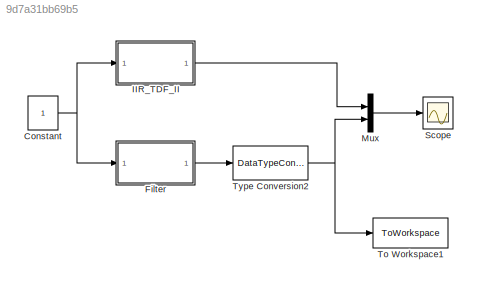
MODEL slx_9d7a31bb69b5
KIND model
BLOCK [Constant] Constant
  OutDataTypeStr = double
  SampleTime = 1/50e6
  VectorParams1D = off
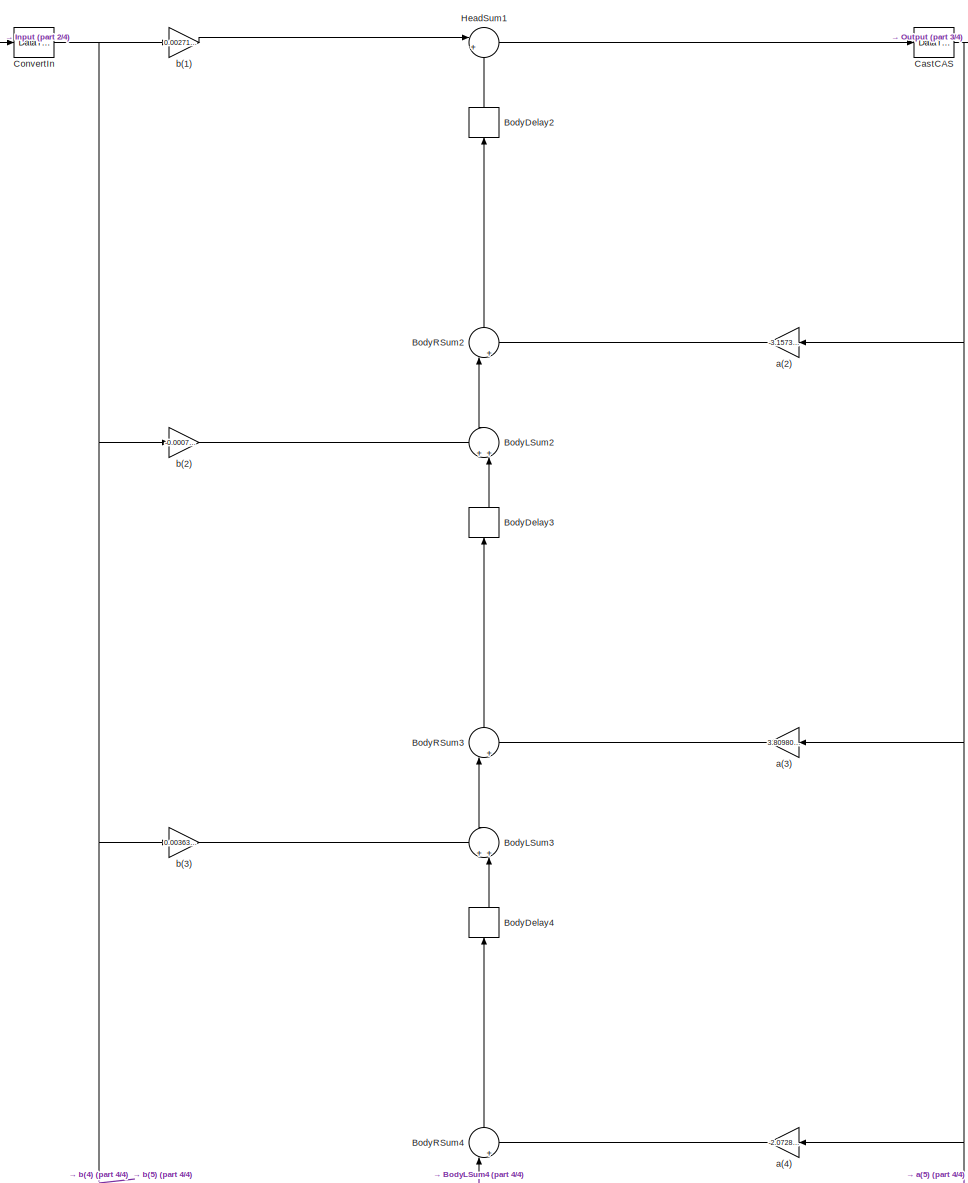
[diagram: Filter - part 1/4, full width, middle band]
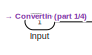
[diagram: Filter - part 2/4, top left region]
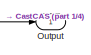
[diagram: Filter - part 3/4, top right region]
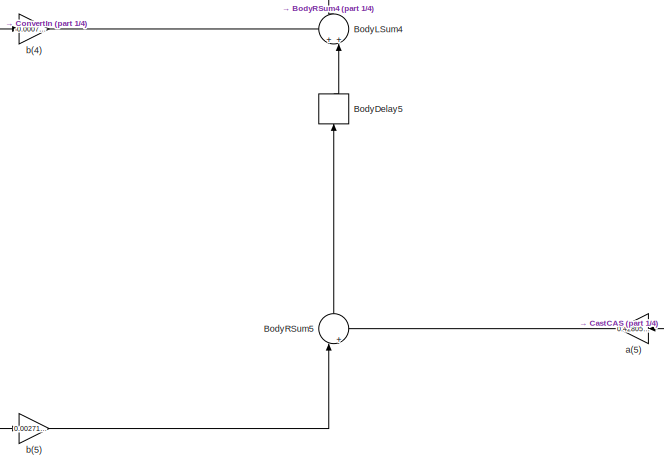
[diagram: Filter - part 4/4, bottom center region]
BLOCK [SubSystem] Filter
  ErrorFcn = dspFilterRealizedInBasicElemsAlgLoopErrFcnCallback
  FunctionWithSeparateData = off
  MaskHideContents = off
  MinAlgLoopOccurrences = off
  Opaque = off
  Ports = [1, 1]
  PropExecContextOutsideSubsystem = off
  RTWSystemCode = Auto
  RequestExecContextInheritance = off
  Tag = FilterWizardSubSystem
  UserDataPersistent = on
BLOCK [Delay] Filter/BodyDelay2
  DelayLength = 1
  InitialCondition = 0
  InputPortMap = u0
  Ports = [1, 1]
BLOCK [Delay] Filter/BodyDelay3
  DelayLength = 1
  InitialCondition = 0
  InputPortMap = u0
  Ports = [1, 1]
BLOCK [Delay] Filter/BodyDelay4
  DelayLength = 1
  InitialCondition = 0
  InputPortMap = u0
  Ports = [1, 1]
BLOCK [Delay] Filter/BodyDelay5
  DelayLength = 1
  InitialCondition = 0
  InputPortMap = u0
  Ports = [1, 1]
BLOCK [Sum] Filter/BodyLSum2
  AccumDataTypeStr = fixdt(1,31,27)
  IconShape = round
  InputSameDT = off
  Inputs = ++|
  OutDataTypeStr = fixdt(1,31,27)
  Ports = [2, 1]
  SaturateOnIntegerOverflow = off
BLOCK [Sum] Filter/BodyLSum3
  AccumDataTypeStr = fixdt(1,31,27)
  IconShape = round
  InputSameDT = off
  Inputs = ++|
  OutDataTypeStr = fixdt(1,31,27)
  Ports = [2, 1]
  SaturateOnIntegerOverflow = off
BLOCK [Sum] Filter/BodyLSum4
  AccumDataTypeStr = fixdt(1,31,27)
  IconShape = round
  InputSameDT = off
  Inputs = ++|
  OutDataTypeStr = fixdt(1,31,27)
  Ports = [2, 1]
  SaturateOnIntegerOverflow = off
BLOCK [Sum] Filter/BodyRSum2
  AccumDataTypeStr = fixdt(1,31,27)
  IconShape = round
  InputSameDT = off
  Inputs = |+-
  OutDataTypeStr = fixdt(1,31,27)
  Ports = [2, 1]
  SaturateOnIntegerOverflow = off
BLOCK [Sum] Filter/BodyRSum3
  AccumDataTypeStr = fixdt(1,31,27)
  IconShape = round
  InputSameDT = off
  Inputs = |+-
  OutDataTypeStr = fixdt(1,31,27)
  Ports = [2, 1]
  SaturateOnIntegerOverflow = off
BLOCK [Sum] Filter/BodyRSum4
  AccumDataTypeStr = fixdt(1,31,27)
  IconShape = round
  InputSameDT = off
  Inputs = |+-
  OutDataTypeStr = fixdt(1,31,27)
  Ports = [2, 1]
  SaturateOnIntegerOverflow = off
BLOCK [Sum] Filter/BodyRSum5
  AccumDataTypeStr = fixdt(1,31,27)
  IconShape = round
  InputSameDT = off
  Inputs = |+-
  OutDataTypeStr = fixdt(1,31,27)
  Ports = [2, 1]
  SaturateOnIntegerOverflow = off
BLOCK [DataTypeConversion] Filter/CastCAS
  OutDataTypeStr = fixdt(1,15,13)
  RndMeth = Floor
  SaturateOnIntegerOverflow = off
BLOCK [DataTypeConversion] Filter/ConvertIn
  OutDataTypeStr = fixdt(1,14,13)
  RndMeth = Nearest
BLOCK [Sum] Filter/HeadSum1
  AccumDataTypeStr = fixdt(1,31,27)
  IconShape = round
  InputSameDT = off
  Inputs = |++
  OutDataTypeStr = fixdt(1,31,27)
  Ports = [2, 1]
  SaturateOnIntegerOverflow = off
BLOCK [Inport] Filter/Input
  IconDisplay = Port number
BLOCK [Outport] Filter/Output
  IconDisplay = Port number
BLOCK [Gain] Filter/a(2)
  Gain = -3.1573348865101507
  OutDataTypeStr = fixdt(1,31,27)
  ParamDataTypeStr = fixdt(1,17,14)
  SaturateOnIntegerOverflow = off
BLOCK [Gain] Filter/a(3)
  Gain = 3.8098042197802529
  OutDataTypeStr = fixdt(1,31,27)
  ParamDataTypeStr = fixdt(1,17,14)
  SaturateOnIntegerOverflow = off
BLOCK [Gain] Filter/a(4)
  Gain = -2.072875612709403
  OutDataTypeStr = fixdt(1,31,27)
  ParamDataTypeStr = fixdt(1,17,14)
  SaturateOnIntegerOverflow = off
BLOCK [Gain] Filter/a(5)
  Gain = 0.42805576585875216
  OutDataTypeStr = fixdt(1,31,27)
  ParamDataTypeStr = fixdt(1,17,14)
  SaturateOnIntegerOverflow = off
BLOCK [Gain] Filter/b(1)
  Gain = 0.0027142307074431711
  OutDataTypeStr = fixdt(1,31,27)
  ParamDataTypeStr = fixdt(1,17,14)
  SaturateOnIntegerOverflow = off
BLOCK [Gain] Filter/b(2)
  Gain = -0.00070464601635181721
  OutDataTypeStr = fixdt(1,31,27)
  ParamDataTypeStr = fixdt(1,17,14)
  SaturateOnIntegerOverflow = off
BLOCK [Gain] Filter/b(3)
  Gain = 0.0036303170372685854
  OutDataTypeStr = fixdt(1,31,27)
  ParamDataTypeStr = fixdt(1,17,14)
  SaturateOnIntegerOverflow = off
BLOCK [Gain] Filter/b(4)
  Gain = -0.00070464601635181721
  OutDataTypeStr = fixdt(1,31,27)
  ParamDataTypeStr = fixdt(1,17,14)
  SaturateOnIntegerOverflow = off
BLOCK [Gain] Filter/b(5)
  Gain = 0.0027142307074431711
  OutDataTypeStr = fixdt(1,31,27)
  ParamDataTypeStr = fixdt(1,17,14)
  SaturateOnIntegerOverflow = off
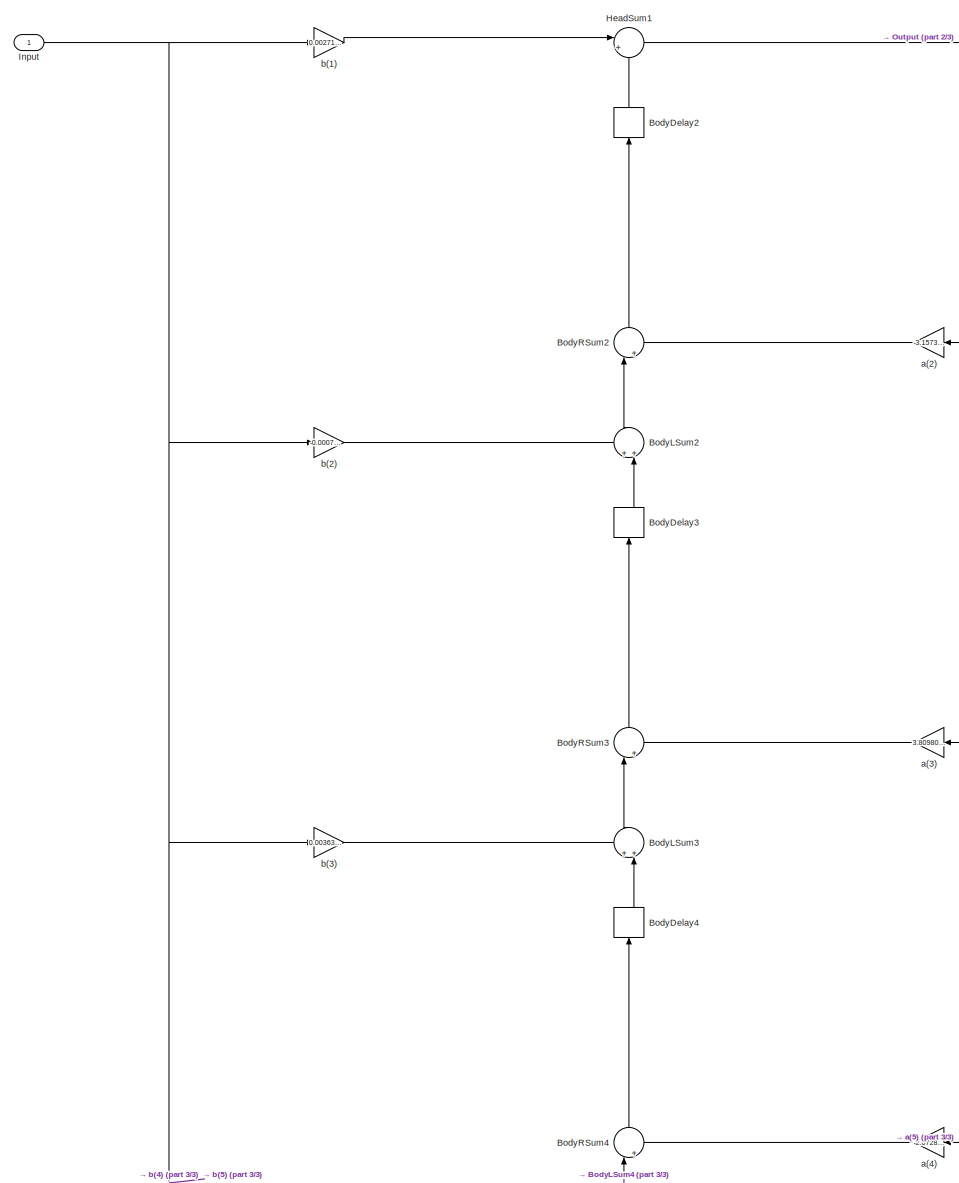
[diagram: IIR_TDF_II - part 1/3, full width, middle band]
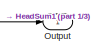
[diagram: IIR_TDF_II - part 2/3, top right region]
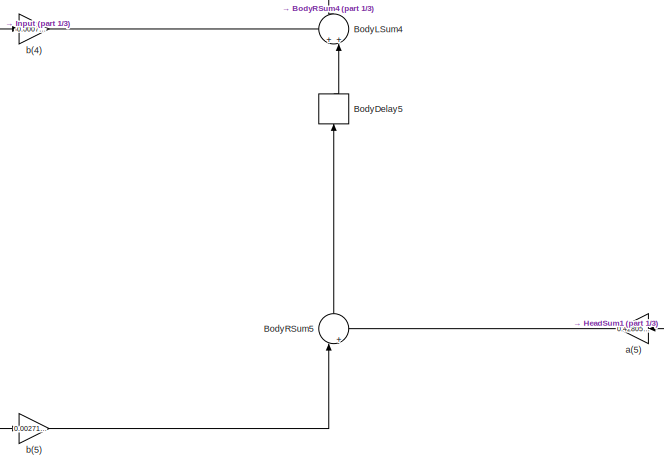
[diagram: IIR_TDF_II - part 3/3, bottom center region]
BLOCK [SubSystem] IIR_TDF_II
  ErrorFcn = dspFilterRealizedInBasicElemsAlgLoopErrFcnCallback
  FunctionWithSeparateData = off
  MaskHideContents = off
  MinAlgLoopOccurrences = off
  Opaque = off
  Ports = [1, 1]
  PropExecContextOutsideSubsystem = off
  RTWSystemCode = Auto
  RequestExecContextInheritance = off
  Tag = FilterWizardSubSystem
  UserDataPersistent = on
BLOCK [Delay] IIR_TDF_II/BodyDelay2
  DelayLength = 1
  InitialCondition = 0
  InputPortMap = u0
  Ports = [1, 1]
BLOCK [Delay] IIR_TDF_II/BodyDelay3
  DelayLength = 1
  InitialCondition = 0
  InputPortMap = u0
  Ports = [1, 1]
BLOCK [Delay] IIR_TDF_II/BodyDelay4
  DelayLength = 1
  InitialCondition = 0
  InputPortMap = u0
  Ports = [1, 1]
BLOCK [Delay] IIR_TDF_II/BodyDelay5
  DelayLength = 1
  InitialCondition = 0
  InputPortMap = u0
  Ports = [1, 1]
BLOCK [Sum] IIR_TDF_II/BodyLSum2
  IconShape = round
  InputSameDT = off
  Inputs = ++|
  Ports = [2, 1]
  RndMeth = Nearest
BLOCK [Sum] IIR_TDF_II/BodyLSum3
  IconShape = round
  InputSameDT = off
  Inputs = ++|
  Ports = [2, 1]
  RndMeth = Nearest
BLOCK [Sum] IIR_TDF_II/BodyLSum4
  IconShape = round
  InputSameDT = off
  Inputs = ++|
  Ports = [2, 1]
  RndMeth = Nearest
BLOCK [Sum] IIR_TDF_II/BodyRSum2
  IconShape = round
  InputSameDT = off
  Inputs = |+-
  Ports = [2, 1]
  RndMeth = Nearest
BLOCK [Sum] IIR_TDF_II/BodyRSum3
  IconShape = round
  InputSameDT = off
  Inputs = |+-
  Ports = [2, 1]
  RndMeth = Nearest
BLOCK [Sum] IIR_TDF_II/BodyRSum4
  IconShape = round
  InputSameDT = off
  Inputs = |+-
  Ports = [2, 1]
  RndMeth = Nearest
BLOCK [Sum] IIR_TDF_II/BodyRSum5
  IconShape = round
  InputSameDT = off
  Inputs = |+-
  Ports = [2, 1]
  RndMeth = Nearest
BLOCK [Sum] IIR_TDF_II/HeadSum1
  IconShape = round
  InputSameDT = off
  Inputs = |++
  Ports = [2, 1]
  RndMeth = Nearest
BLOCK [Inport] IIR_TDF_II/Input
  IconDisplay = Port number
BLOCK [Outport] IIR_TDF_II/Output
  IconDisplay = Port number
BLOCK [Gain] IIR_TDF_II/a(2)
  Gain = -3.1573348865101507
  ParamDataTypeStr = double
  RndMeth = Nearest
BLOCK [Gain] IIR_TDF_II/a(3)
  Gain = 3.8098042197802529
  ParamDataTypeStr = double
  RndMeth = Nearest
BLOCK [Gain] IIR_TDF_II/a(4)
  Gain = -2.072875612709403
  ParamDataTypeStr = double
  RndMeth = Nearest
BLOCK [Gain] IIR_TDF_II/a(5)
  Gain = 0.42805576585875216
  ParamDataTypeStr = double
  RndMeth = Nearest
BLOCK [Gain] IIR_TDF_II/b(1)
  Gain = 0.0027142307074431711
  ParamDataTypeStr = double
  RndMeth = Nearest
BLOCK [Gain] IIR_TDF_II/b(2)
  Gain = -0.00070464601635181721
  ParamDataTypeStr = double
  RndMeth = Nearest
BLOCK [Gain] IIR_TDF_II/b(3)
  Gain = 0.0036303170372685854
  ParamDataTypeStr = double
  RndMeth = Nearest
BLOCK [Gain] IIR_TDF_II/b(4)
  Gain = -0.00070464601635181721
  ParamDataTypeStr = double
  RndMeth = Nearest
BLOCK [Gain] IIR_TDF_II/b(5)
  Gain = 0.0027142307074431711
  ParamDataTypeStr = double
  RndMeth = Nearest
BLOCK [Mux] Mux
  DisplayOption = bar
  Inputs = 2
  Ports = [2, 1]
BLOCK [Scope] Scope
  DataFormat = StructureWithTime
  Floating = off
  LimitDataPoints = off
  NumInputPorts = 1
  Ports = [1]
  SampleTime = 0
  ShowLegends = off
  YMax = 0.85
  YMin = 0.1
  ZoomMode = xonly
BLOCK [ToWorkspace] To Workspace1
  MaxDataPoints = inf
  Ports = [1]
  SampleTime = -1
  SaveFormat = Timeseries
  VariableName = IIR_Output
BLOCK [DataTypeConversion] Type Conversion2
  OutDataTypeStr = double
  RndMeth = Floor
  SaturateOnIntegerOverflow = off
NET Constant:1 -> Filter:1, IIR_TDF_II:1
LINE Filter/BodyDelay2:1 -> Filter/HeadSum1:2
LINE Filter/BodyDelay3:1 -> Filter/BodyLSum2:2
LINE Filter/BodyDelay4:1 -> Filter/BodyLSum3:2
LINE Filter/BodyDelay5:1 -> Filter/BodyLSum4:2
LINE Filter/BodyLSum2:1 -> Filter/BodyRSum2:1
LINE Filter/BodyLSum3:1 -> Filter/BodyRSum3:1
LINE Filter/BodyLSum4:1 -> Filter/BodyRSum4:1
LINE Filter/BodyRSum2:1 -> Filter/BodyDelay2:1
LINE Filter/BodyRSum3:1 -> Filter/BodyDelay3:1
LINE Filter/BodyRSum4:1 -> Filter/BodyDelay4:1
LINE Filter/BodyRSum5:1 -> Filter/BodyDelay5:1
NET Filter/CastCAS:1 -> Filter/Output:1, Filter/a(2):1, Filter/a(3):1, Filter/a(4):1, Filter/a(5):1
NET Filter/ConvertIn:1 -> Filter/b(1):1, Filter/b(2):1, Filter/b(3):1, Filter/b(4):1, Filter/b(5):1
LINE Filter/HeadSum1:1 -> Filter/CastCAS:1
LINE Filter/Input:1 -> Filter/ConvertIn:1
LINE Filter/a(2):1 -> Filter/BodyRSum2:2
LINE Filter/a(3):1 -> Filter/BodyRSum3:2
LINE Filter/a(4):1 -> Filter/BodyRSum4:2
LINE Filter/a(5):1 -> Filter/BodyRSum5:2
LINE Filter/b(1):1 -> Filter/HeadSum1:1
LINE Filter/b(2):1 -> Filter/BodyLSum2:1
LINE Filter/b(3):1 -> Filter/BodyLSum3:1
LINE Filter/b(4):1 -> Filter/BodyLSum4:1
LINE Filter/b(5):1 -> Filter/BodyRSum5:1
LINE Filter:1 -> Type Conversion2:1
LINE IIR_TDF_II/BodyDelay2:1 -> IIR_TDF_II/HeadSum1:2
LINE IIR_TDF_II/BodyDelay3:1 -> IIR_TDF_II/BodyLSum2:2
LINE IIR_TDF_II/BodyDelay4:1 -> IIR_TDF_II/BodyLSum3:2
LINE IIR_TDF_II/BodyDelay5:1 -> IIR_TDF_II/BodyLSum4:2
LINE IIR_TDF_II/BodyLSum2:1 -> IIR_TDF_II/BodyRSum2:1
LINE IIR_TDF_II/BodyLSum3:1 -> IIR_TDF_II/BodyRSum3:1
LINE IIR_TDF_II/BodyLSum4:1 -> IIR_TDF_II/BodyRSum4:1
LINE IIR_TDF_II/BodyRSum2:1 -> IIR_TDF_II/BodyDelay2:1
LINE IIR_TDF_II/BodyRSum3:1 -> IIR_TDF_II/BodyDelay3:1
LINE IIR_TDF_II/BodyRSum4:1 -> IIR_TDF_II/BodyDelay4:1
LINE IIR_TDF_II/BodyRSum5:1 -> IIR_TDF_II/BodyDelay5:1
NET IIR_TDF_II/HeadSum1:1 -> IIR_TDF_II/Output:1, IIR_TDF_II/a(2):1, IIR_TDF_II/a(3):1, IIR_TDF_II/a(4):1, IIR_TDF_II/a(5):1
NET IIR_TDF_II/Input:1 -> IIR_TDF_II/b(1):1, IIR_TDF_II/b(2):1, IIR_TDF_II/b(3):1, IIR_TDF_II/b(4):1, IIR_TDF_II/b(5):1
LINE IIR_TDF_II/a(2):1 -> IIR_TDF_II/BodyRSum2:2
LINE IIR_TDF_II/a(3):1 -> IIR_TDF_II/BodyRSum3:2
LINE IIR_TDF_II/a(4):1 -> IIR_TDF_II/BodyRSum4:2
LINE IIR_TDF_II/a(5):1 -> IIR_TDF_II/BodyRSum5:2
LINE IIR_TDF_II/b(1):1 -> IIR_TDF_II/HeadSum1:1
LINE IIR_TDF_II/b(2):1 -> IIR_TDF_II/BodyLSum2:1
LINE IIR_TDF_II/b(3):1 -> IIR_TDF_II/BodyLSum3:1
LINE IIR_TDF_II/b(4):1 -> IIR_TDF_II/BodyLSum4:1
LINE IIR_TDF_II/b(5):1 -> IIR_TDF_II/BodyRSum5:1
LINE IIR_TDF_II:1 -> Mux:1
LINE Mux:1 -> Scope:1
NET Type Conversion2:1 -> Mux:2, To Workspace1:1
note: NET lines group one-source signal fan-out (src -> all destinations, sorted); 1:1 wires keep LINE
